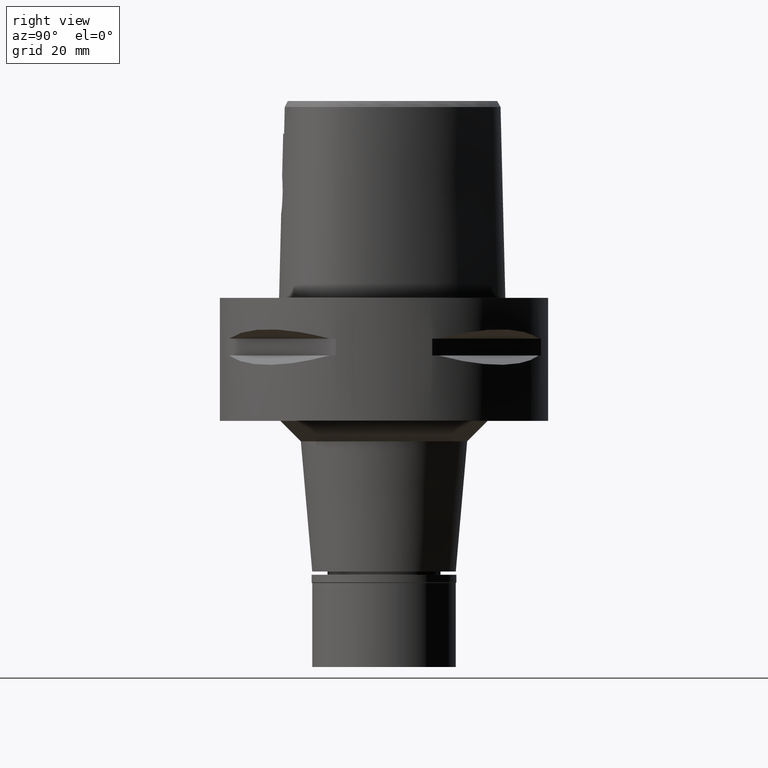
[diagram: clean part render]
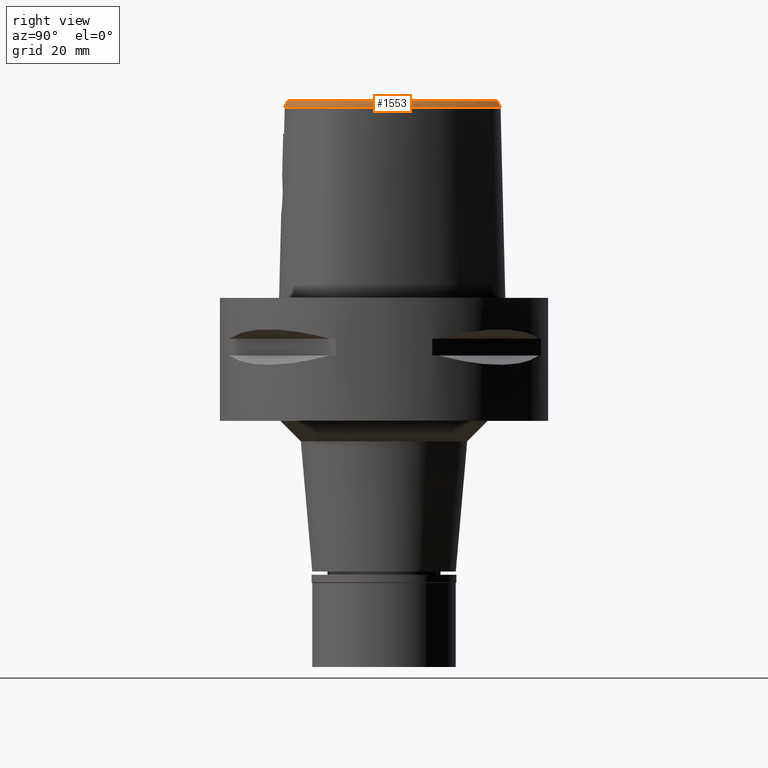
[diagram: same view with one face highlighted and labeled with its STEP entity id]
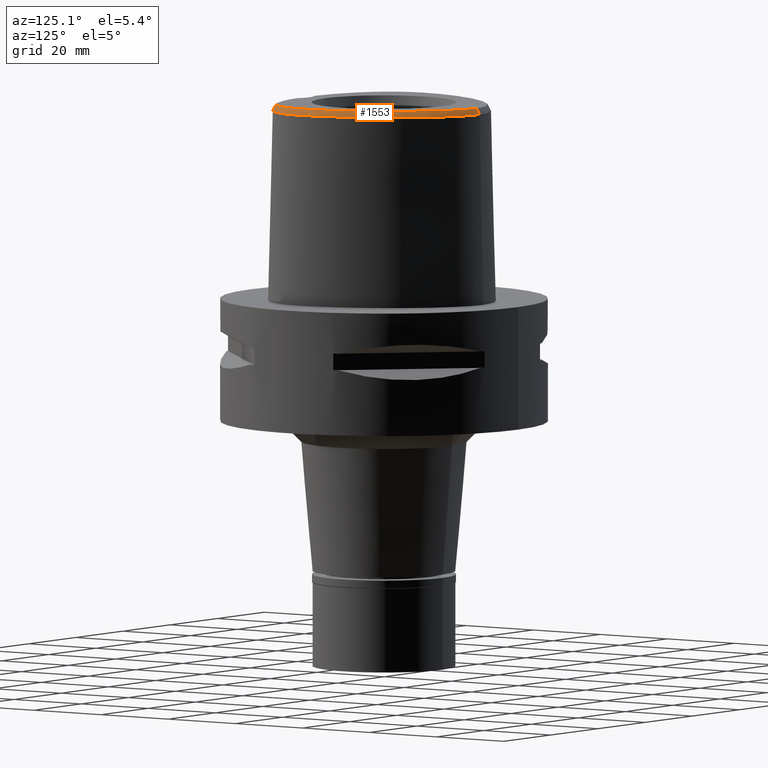
[diagram: same view with one face highlighted and labeled with its STEP entity id]
A machine part, right view. The second image highlights one B-rep face of the part: STEP entity #1553.
A second angle (auxiliary view) of the same face is appended — the face is thin or edge-on in the first view.
In plain terms, the highlighted face is a freeform B-spline surface patch.
Its self-contained STEP definition (entity closure, byte-faithful):
#1 = CARTESIAN_POINT ( 'NONE',  ( 18.43950286813999639, 16.56046399036999972, 46.33802400295999746 ) ) ;
#14 = CARTESIAN_POINT ( 'NONE',  ( -0.5411535927034999416, 28.50621727621999923, 46.33802340310999313 ) ) ;
#24 = CARTESIAN_POINT ( 'NONE',  ( 20.57834071988999725, 13.37729164177999941, 46.33802354784000244 ) ) ;
#66 = CARTESIAN_POINT ( 'NONE',  ( 16.39076485917556880, -21.20751266143113156, 46.52069409116129606 ) ) ;
#115 = CARTESIAN_POINT ( 'NONE',  ( 26.31362514631000238, -3.999883274220000118, 46.95290429171999591 ) ) ;
#138 = LINE ( 'NONE', #2857, #2443 ) ;
#144 = CARTESIAN_POINT ( 'NONE',  ( 24.57708372192999846, 3.020265341427999850, 47.56778458952999955 ) ) ;
#154 = CARTESIAN_POINT ( 'NONE',  ( 21.11289573496999949, -17.02247010655999659, 48.18266515062000366 ) ) ;
#164 = CARTESIAN_POINT ( 'NONE',  ( 22.45659887780828967, 7.877591736060228556, 48.00000000000376588 ) ) ;
#168 = CARTESIAN_POINT ( 'NONE',  ( 21.26050392519000098, 11.53300913518999948, 46.95290411511999906 ) ) ;
#181 = CARTESIAN_POINT ( 'NONE',  ( 3.509388651876999887, -24.38554859203000191, 46.33802515374999587 ) ) ;
#190 = CARTESIAN_POINT ( 'NONE',  ( 4.491298471527702674, 26.80158405531556554, 48.00000000000324007 ) ) ;
#195 = CARTESIAN_POINT ( 'NONE',  ( 3.841287394385000109, 27.62030014480999895, 46.95290447873000517 ) ) ;
#204 = CARTESIAN_POINT ( 'NONE',  ( 18.35629572338999793, -19.86592511087000190, 46.95290423267000079 ) ) ;
#212 = CARTESIAN_POINT ( 'NONE',  ( 24.34579675531232112, 2.948329282943770391, 48.00000000001110578 ) ) ;
#218 = CARTESIAN_POINT ( 'NONE',  ( 12.53612784758999865, 22.57209867215000187, 46.95290554992000409 ) ) ;
#237 = CARTESIAN_POINT ( 'NONE',  ( 13.73649434293000127, -21.98473153684999915, 46.95290426684000096 ) ) ;
#245 = CARTESIAN_POINT ( 'NONE',  ( 25.78811069501355391, -5.218135357747569536, 48.00000000001148237 ) ) ;
#247 = CARTESIAN_POINT ( 'NONE',  ( 14.52988293424999888, 20.17292910605000245, 47.56778553004999566 ) ) ;
#258 = CARTESIAN_POINT ( 'NONE',  ( 19.71319970464999827, -18.15714131269000120, 48.18266508833000472 ) ) ;
#268 = CARTESIAN_POINT ( 'NONE',  ( 25.74155027847784893, -7.352132003089971946, 48.00000000000314770 ) ) ;
#270 = CARTESIAN_POINT ( 'NONE',  ( 4.472216720976999405, -24.20009030094000124, 46.52069014668999358 ) ) ;
#272 = CARTESIAN_POINT ( 'NONE',  ( 2.874676923873999979, 27.15616836459999917, 48.18266509505000528 ) ) ;
#282 = CARTESIAN_POINT ( 'NONE',  ( 26.37724094575000322, -6.332058012550000115, 46.95290442977999845 ) ) ;
#295 = CARTESIAN_POINT ( 'NONE',  ( 21.78596494080420953, -16.52262878100317423, 48.00000000000203926 ) ) ;
#298 = CARTESIAN_POINT ( 'NONE',  ( 8.528179086875999459, 25.93721919992999858, 46.33802360507999651 ) ) ;
#314 = CARTESIAN_POINT ( 'NONE',  ( 24.84710733047000275, -12.40399542197999949, 47.56778472267999547 ) ) ;
#335 = CARTESIAN_POINT ( 'NONE',  ( 22.51168726802000108, -16.10559452158999605, 47.56778461883000375 ) ) ;
#345 = CARTESIAN_POINT ( 'NONE',  ( 10.99875819582631742, 24.38035098656107991, 46.52071268652616709 ) ) ;
#356 = CARTESIAN_POINT ( 'NONE',  ( 26.02432140029000252, -11.12325284221000032, 46.33802347192999349 ) ) ;
#366 = CARTESIAN_POINT ( 'NONE',  ( 13.63304938780058073, 22.11238814014353338, 46.52071155953430548 ) ) ;
#382 = CARTESIAN_POINT ( 'NONE',  ( 26.42769315610999925, -9.384851671964000275, 46.33802332118000322 ) ) ;
#411 = CARTESIAN_POINT ( 'NONE',  ( 17.60599060682000072, 15.94903692397000050, 48.18266507903999951 ) ) ;
#419 = CARTESIAN_POINT ( 'NONE',  ( 2.878136434665000021, -23.39194313750999754, 48.18266497532999892 ) ) ;
#423 = CARTESIAN_POINT ( 'NONE',  ( 26.53043812451214478, -3.252830914801275508, 46.52070254359986023 ) ) ;
#424 = CARTESIAN_POINT ( 'NONE',  ( 0.7467689276482000205, 28.50027894028000119, 46.33802324219000468 ) ) ;
#433 = CARTESIAN_POINT ( 'NONE',  ( 26.05149428239000287, 0.1304452533182000051, 46.33802406630000092 ) ) ;
#519 = CARTESIAN_POINT ( 'NONE',  ( 23.30388493096999980, 8.264288335471999147, 46.33802598874000722 ) ) ;
#530 = CARTESIAN_POINT ( 'NONE',  ( 12.32744696961000130, -22.44857317242999883, 46.95290429007999933 ) ) ;
#532 = CARTESIAN_POINT ( 'NONE',  ( 12.15683615294029352, -21.88711351950809458, 48.00000000000355271 ) ) ;
#548 = CARTESIAN_POINT ( 'NONE',  ( 20.95979648964000219, 11.36477241055999876, 47.56778461859000373 ) ) ;
#560 = CARTESIAN_POINT ( 'NONE',  ( 10.64350221649999995, -22.20543686866000144, 48.18266513273999863 ) ) ;
#568 = CARTESIAN_POINT ( 'NONE',  ( 24.00708073425740352, -13.59389763843170584, 48.00000000000810729 ) ) ;
#572 = CARTESIAN_POINT ( 'NONE',  ( 13.17163801908000131, 21.05047794357999891, 48.18266467973000289 ) ) ;
#584 = CARTESIAN_POINT ( 'NONE',  ( 17.34650972298999960, -20.42430267193999782, 46.95290405944999890 ) ) ;
#585 = CARTESIAN_POINT ( 'NONE',  ( 4.358863301034158866, -23.38302754646648651, 48.00000000000662226 ) ) ;
#594 = CARTESIAN_POINT ( 'NONE',  ( 5.331982176208637014, 26.48833275828505762, 48.00000000000437694 ) ) ;
#597 = CARTESIAN_POINT ( 'NONE',  ( 5.293671705630999647, 26.39338998718999818, 48.18266513905999915 ) ) ;
#607 = CARTESIAN_POINT ( 'NONE',  ( 3.432736435283000098, -23.35494909631000127, 48.18266495255999615 ) ) ;
#626 = CARTESIAN_POINT ( 'NONE',  ( 5.422630979152000208, 26.71298279306999746, 47.56778457834000307 ) ) ;
#642 = CARTESIAN_POINT ( 'NONE',  ( 9.058552399710000813, -22.57631281572000148, 48.18266513224000391 ) ) ;
#650 = CARTESIAN_POINT ( 'NONE',  ( 18.76051936065659476, 14.48366014233034171, 48.00000000000756728 ) ) ;
#651 = B_SPLINE_CURVE_WITH_KNOTS ( 'NONE', 3,
 ( #3894, #3923, #1225, #727, #3517, #345, #366, #3542, #3134, #2004, #423, #3568, #4691, #4641, #4669, #1921, #1141, #1637, #3155, #4715, #1604, #3488, #66, #1163, #2749, #1188 ),
 .UNSPECIFIED., .F., .F.,
 ( 4, 2, 2, 2, 2, 2, 2, 2, 2, 2, 2, 2, 4 ),
 ( 0.0000000000000000000, 0.06250000000000000000, 0.1250000000000000000, 0.2499999999999999445, 0.4999999999999998890, 0.5624999999999998890, 0.6249999999999998890, 0.6874999999999998890, 0.7187499999999998890, 0.7499999999999998890, 0.8124999999999998890, 0.8749999999999998890, 1.000000000000000000 ),
 .UNSPECIFIED. ) ;
#655 = CARTESIAN_POINT ( 'NONE',  ( 4.794166553444000556, 27.68249828417999936, 46.33802392881000287 ) ) ;
#664 = CARTESIAN_POINT ( 'NONE',  ( 24.02148544150000120, -15.31764509579999967, 46.33802336610000339 ) ) ;
#674 = CARTESIAN_POINT ( 'NONE',  ( 22.33100613406677937, -15.94420923685450475, 48.00000000000585487 ) ) ;
#677 = CARTESIAN_POINT ( 'NONE',  ( 0.7075336095839001027, 27.81207658802000182, 47.56778452250000555 ) ) ;
#687 = CARTESIAN_POINT ( 'NONE',  ( 23.28034457108999788, -15.72899008985000080, 46.95290438330000171 ) ) ;
#714 = CARTESIAN_POINT ( 'NONE',  ( 24.15217140319999700, -14.50258050927000042, 46.95290389460000569 ) ) ;
#727 = CARTESIAN_POINT ( 'NONE',  ( 5.530043876419189708, 27.35846726635969262, 46.52071494050974110 ) ) ;
#740 = CARTESIAN_POINT ( 'NONE',  ( 24.54633358082999806, -13.07701633097000027, 47.56778446169000318 ) ) ;
#764 = CARTESIAN_POINT ( 'NONE',  ( 25.74893635269999947, -9.264935650655999666, 47.56778454305000281 ) ) ;
#794 = CARTESIAN_POINT ( 'NONE',  ( 23.71480609434000186, 4.513844615388999948, 48.18266516701000057 ) ) ;
#808 = CARTESIAN_POINT ( 'NONE',  ( -0.01607486358922000091, 27.83266569382000100, 47.56778467571000135 ) ) ;
#820 = CARTESIAN_POINT ( 'NONE',  ( 26.52960715546000259, -2.680349596900000186, 46.33802367807000167 ) ) ;
#909 = CARTESIAN_POINT ( 'NONE',  ( 24.24804904942000050, 2.917927290169999743, 48.18266513434000586 ) ) ;
#918 = CARTESIAN_POINT ( 'NONE',  ( 20.66506287690999955, -17.85940181649000280, 47.56778454951000157 ) ) ;
#930 = CARTESIAN_POINT ( 'NONE',  ( 23.72539072922000258, 6.416340961018000222, 46.95290477523000305 ) ) ;
#941 = CARTESIAN_POINT ( 'NONE',  ( 14.91086941156999934, -21.16960785240000220, 47.56778459312000251 ) ) ;
#944 = CARTESIAN_POINT ( 'NONE',  ( 17.07549476912088338, -19.90378693825266510, 48.00000000001053024 ) ) ;
#957 = CARTESIAN_POINT ( 'NONE',  ( 25.41171405094233648, -1.468769615952869589, 48.00000000000984812 ) ) ;
#963 = CARTESIAN_POINT ( 'NONE',  ( 18.67554920066999813, 14.42657791169999904, 48.18266504364000014 ) ) ;
#965 = CARTESIAN_POINT ( 'NONE',  ( 4.472216720976999405, -24.20009030094000124, 46.52069014668999358 ) ) ;
#979 = CARTESIAN_POINT ( 'NONE',  ( 16.38705786137999709, -21.27979599520999798, 46.33802395699999721 ) ) ;
#987 = CARTESIAN_POINT ( 'NONE',  ( 14.35433142683603336, 20.00604447575085487, 48.00000000000230926 ) ) ;
#991 = CARTESIAN_POINT ( 'NONE',  ( 9.162461845584999764, 24.72869486535999783, 47.56778460323000246 ) ) ;
#1002 = CARTESIAN_POINT ( 'NONE',  ( 10.72907888047000036, -22.53922613905000105, 47.56778459331999898 ) ) ;
#1003 = CARTESIAN_POINT ( 'NONE',  ( 15.99678577414538339, -20.43406366493351456, 48.00000000000904521 ) ) ;
#1010 = CARTESIAN_POINT ( 'NONE',  ( 7.112111422624984414, 25.66156608519343862, 48.00000000000465405 ) ) ;
#1012 = CARTESIAN_POINT ( 'NONE',  ( 9.978542016815000082, 23.74375122918999992, 48.18266515378999770 ) ) ;
#1024 = CARTESIAN_POINT ( 'NONE',  ( 18.53015989414000231, -20.16346613882999605, 46.33802379824000184 ) ) ;
#1035 = CARTESIAN_POINT ( 'NONE',  ( 2.897393261679677590, 27.25600202853102516, 47.99999999999998579 ) ) ;
#1044 = CARTESIAN_POINT ( 'NONE',  ( 13.41076986222000045, 21.29858345911999962, 47.56778566519000151 ) ) ;
#1054 = CARTESIAN_POINT ( 'NONE',  ( 25.36220458565000158, -10.93162402374000131, 47.56778458224999895 ) ) ;
#1063 = CARTESIAN_POINT ( 'NONE',  ( 24.32795549673483748, -12.97211154200324046, 48.00000000001168132 ) ) ;
#1067 = CARTESIAN_POINT ( 'NONE',  ( 7.225125039216999667, 25.87582929107999874, 47.56778477671999639 ) ) ;
#1078 = CARTESIAN_POINT ( 'NONE',  ( 25.69326299296999849, -11.02743843298000037, 46.95290402708999267 ) ) ;
#1089 = CARTESIAN_POINT ( 'NONE',  ( 10.18171432111999941, 24.02208807508000277, 47.56778454350000374 ) ) ;
#1100 = CARTESIAN_POINT ( 'NONE',  ( 25.16767392208999965, -13.37549672861999994, 46.33802300831999332 ) ) ;
#1128 = CARTESIAN_POINT ( 'NONE',  ( 24.52857122625000130, -12.27238596123000036, 48.18266507806000476 ) ) ;
#1141 = CARTESIAN_POINT ( 'NONE',  ( 24.33934953590530625, -14.68006085516641512, 46.52069803563262695 ) ) ;
#1142 = CARTESIAN_POINT ( 'NONE',  ( -0.01713114112638999820, 28.52201984853000027, 46.33802383133000546 ) ) ;
#1154 = CARTESIAN_POINT ( 'NONE',  ( 25.90860160546000301, -10.20256986334999993, 46.95290396821999934 ) ) ;
#1163 = CARTESIAN_POINT ( 'NONE',  ( 11.70978320535149386, -23.05272019184888777, 46.52069240067358180 ) ) ;
#1165 = CARTESIAN_POINT ( 'NONE',  ( -0.4990981238780000107, 27.47344184091000230, 48.18266514497000230 ) ) ;
#1176 = CARTESIAN_POINT ( 'NONE',  ( 17.88382802726000165, 16.15284594610000113, 47.56778472034999794 ) ) ;
#1188 = CARTESIAN_POINT ( 'NONE',  ( 4.472216720976999405, -24.20009030094000124, 46.52069014668999358 ) ) ;
#1209 = CARTESIAN_POINT ( 'NONE',  ( 25.62637795912000271, -4.051866679264000126, 48.18266509125000141 ) ) ;
#1225 = CARTESIAN_POINT ( 'NONE',  ( 2.760678900605150421, 28.19254769429840479, 46.52071606750156008 ) ) ;
#1234 = EDGE_CURVE ( 'NONE', #3121, #3269, #138, .T. ) ;
#1301 = CARTESIAN_POINT ( 'NONE',  ( 26.37473671356000082, -5.202030594842000255, 46.95290399021000383 ) ) ;
#1312 = CARTESIAN_POINT ( 'NONE',  ( 20.32170819522000116, -18.99297843326000290, 46.33802391847000024 ) ) ;
#1326 = CARTESIAN_POINT ( 'NONE',  ( 22.16524007796000006, 9.835499120369000536, 46.95290531444999971 ) ) ;
#1336 = CARTESIAN_POINT ( 'NONE',  ( 13.85135768944000212, -22.30961763924000252, 46.33802385247000188 ) ) ;
#1346 = CARTESIAN_POINT ( 'NONE',  ( 11.07918744941278710, 23.03051546724945453, 48.00000000000558487 ) ) ;
#1350 = CARTESIAN_POINT ( 'NONE',  ( 21.56121136073999978, 11.70124585980999932, 46.33802361165000150 ) ) ;
#1364 = CARTESIAN_POINT ( 'NONE',  ( 15.17010390322000113, -21.80819201027999910, 46.33802351373000050 ) ) ;
#1366 = CARTESIAN_POINT ( 'NONE',  ( 14.81975810290956375, -20.94516920634563206, 48.00000000000914469 ) ) ;
#1376 = CARTESIAN_POINT ( 'NONE',  ( 12.14811716929942698, 22.13187320258469981, 48.00000000000200373 ) ) ;
#1382 = CARTESIAN_POINT ( 'NONE',  ( 2.239190224898000015, 27.98460823625999794, 46.95290373381000393 ) ) ;
#1395 = CARTESIAN_POINT ( 'NONE',  ( 7.549327029004999190, -23.91352827992000130, 46.33802345083000063 ) ) ;
#1405 = CARTESIAN_POINT ( 'NONE',  ( 8.352550235656998723, 25.64071864893000097, 46.95290411097000316 ) ) ;
#1418 = CARTESIAN_POINT ( 'NONE',  ( 17.50565638156000148, -20.72996233597000071, 46.33802352328999774 ) ) ;
#1429 = CARTESIAN_POINT ( 'NONE',  ( 7.385901060748000013, 26.18064553218000157, 46.95290449822000056 ) ) ;
#1438 = CARTESIAN_POINT ( 'NONE',  ( 25.63943502143999709, -7.344796570949999825, 48.18266503952999358 ) ) ;
#1450 = CARTESIAN_POINT ( 'NONE',  ( 23.18188527997380532, 6.195157684106592733, 47.99999999999972289 ) ) ;
#1457 = CARTESIAN_POINT ( 'NONE',  ( 13.88903354848999960, 21.79479449020000104, 46.33802763612000319 ) ) ;
#1471 = CARTESIAN_POINT ( 'NONE',  ( 21.95759681244999939, -16.69360157045000292, 47.56778457464000098 ) ) ;
#1483 = CARTESIAN_POINT ( 'NONE',  ( 8.001292533219000802, 25.04771754693999952, 48.18266512277000402 ) ) ;
#1492 = CARTESIAN_POINT ( 'NONE',  ( 26.24433306268999999, -10.28042059604000080, 46.33802337850000441 ) ) ;
#1513 = CARTESIAN_POINT ( 'NONE',  ( 23.54965866178999789, -15.94406052730000134, 46.33802403731999675 ) ) ;
#1545 = CARTESIAN_POINT ( 'NONE',  ( 22.76872880654000042, -16.33518529831999899, 46.95290411570999822 ) ) ;
#1553 = ADVANCED_FACE ( 'NONE', ( #3175 ), #4349, .F. ) ;
#1568 = CARTESIAN_POINT ( 'NONE',  ( 16.50781389038000313, 17.38127717165999897, 48.18266519101999990 ) ) ;
#1591 = CARTESIAN_POINT ( 'NONE',  ( 17.31504497730000125, 18.02701690221000064, 46.33802298420000199 ) ) ;
#1604 = CARTESIAN_POINT ( 'NONE',  ( 20.45409312013851988, -18.82869992193702657, 46.52069578164903163 ) ) ;
#1627 = ORIENTED_EDGE ( 'NONE', *, *, #3934, .T. ) ;
#1637 = CARTESIAN_POINT ( 'NONE',  ( 23.53784508589650315, -15.81022840325133139, 46.52069747213671747 ) ) ;
#1684 = CARTESIAN_POINT ( 'NONE',  ( 25.84557421587999926, -2.764586361117999935, 47.56778463586000782 ) ) ;
#1716 = CARTESIAN_POINT ( 'NONE',  ( 24.90611839443999997, 3.122603392687000046, 46.95290404472999768 ) ) ;
#1729 = CARTESIAN_POINT ( 'NONE',  ( 13.62163099640999953, -21.65984543445999932, 47.56778468121000003 ) ) ;
#1741 = CARTESIAN_POINT ( 'NONE',  ( 9.029067995419824300, 24.52649931749715861, 48.00000000001080025 ) ) ;
#1745 = CARTESIAN_POINT ( 'NONE',  ( 26.65724873990999910, -3.973891571697000025, 46.33802389195000870 ) ) ;
#1756 = CARTESIAN_POINT ( 'NONE',  ( 3.483837913011999632, -24.04201542678999814, 46.95290508669000218 ) ) ;
#1764 = CARTESIAN_POINT ( 'NONE',  ( 23.65541542675512687, -14.18997106324353297, 48.00000000001105604 ) ) ;
#1769 = CARTESIAN_POINT ( 'NONE',  ( 3.027610697659999683, 27.82828105751999814, 46.95290426986999677 ) ) ;
#1780 = CARTESIAN_POINT ( 'NONE',  ( 3.181163865392999668, -24.06339091685999776, 46.95290502523000242 ) ) ;
#1794 = CARTESIAN_POINT ( 'NONE',  ( 25.60516200877858850, -2.794192459353071811, 48.00000000000368772 ) ) ;
#1798 = CARTESIAN_POINT ( 'NONE',  ( 9.352231301449998924, 25.01634335175999979, 46.95290407790999154 ) ) ;
#1811 = CARTESIAN_POINT ( 'NONE',  ( 14.78125216574999889, -20.85031577346000020, 48.18266513281999863 ) ) ;
#1822 = CARTESIAN_POINT ( 'NONE',  ( 2.123382038864999988, 27.30510347903999957, 48.18266518856999880 ) ) ;
#1836 = CARTESIAN_POINT ( 'NONE',  ( 12.12707321900000146, -21.78916728793000246, 48.18266509152999788 ) ) ;
#1845 = CARTESIAN_POINT ( 'NONE',  ( 25.64658655008008026, -8.318518488027471847, 48.00000000000896705 ) ) ;
#1847 = CARTESIAN_POINT ( 'NONE',  ( 3.935832015791999705, -23.66630391297000102, 47.55621598974999387 ) ) ;
#1848 = CARTESIAN_POINT ( 'NONE',  ( 1.435290817617000059, 27.75042736177000080, 47.56778439369999489 ) ) ;
#1858 = CARTESIAN_POINT ( 'NONE',  ( 26.08831475440999981, -9.324893661309999970, 46.95290393211000435 ) ) ;
#1871 = CARTESIAN_POINT ( 'NONE',  ( 18.95779336836821116, -18.80349047534956242, 48.00000000000044764 ) ) ;
#1877 = CARTESIAN_POINT ( 'NONE',  ( 15.02937093910000144, 20.64775767492999847, 46.33802711647999928 ) ) ;
#1888 = CARTESIAN_POINT ( 'NONE',  ( 24.79431518123999822, -11.57611324977999878, 48.18266510553999638 ) ) ;
#1912 = CARTESIAN_POINT ( 'NONE',  ( 21.71342898274000177, -16.45037136770000075, 48.18266514062000283 ) ) ;
#1921 = CARTESIAN_POINT ( 'NONE',  ( 24.69258566271574651, -14.08975149522464321, 46.52069831738057815 ) ) ;
#1923 = CARTESIAN_POINT ( 'NONE',  ( -0.5131166134864999506, 27.81770031935000276, 47.56778456434999924 ) ) ;
#1934 = CARTESIAN_POINT ( 'NONE',  ( 25.23713869099000107, -10.04686839796999998, 48.18266514767999809 ) ) ;
#1966 = CARTESIAN_POINT ( 'NONE',  ( 19.53361932649999844, 15.00302212255000178, 46.33802432510000102 ) ) ;
#1977 = CARTESIAN_POINT ( 'NONE',  ( -0.01660300235780999903, 28.17734277117000019, 46.95290425352000341 ) ) ;
#1990 = CARTESIAN_POINT ( 'NONE',  ( 25.71474844872000176, 0.05733830567148000268, 46.95290440156000500 ) ) ;
#1999 = CARTESIAN_POINT ( 'NONE',  ( 2.899502052801000040, -23.73575536824000309, 47.56778496576000492 ) ) ;
#2004 = CARTESIAN_POINT ( 'NONE',  ( 26.30769162470500433, -1.593520748820492328, 46.52070310709576262 ) ) ;
#2014 = CARTESIAN_POINT ( 'NONE',  ( 25.35517940871000064, 1.556803668239000071, 46.95290407022999801 ) ) ;
#2104 = CARTESIAN_POINT ( 'NONE',  ( 25.37800261505000066, -0.01576864197519999705, 47.56778473681999486 ) ) ;
#2122 = CARTESIAN_POINT ( 'NONE',  ( 12.42763384492000078, -22.77827611469000146, 46.33802388935000494 ) ) ;
#2124 = CARTESIAN_POINT ( 'NONE',  ( 3.695072017993002333, -23.43648746218571333, 48.00000000000319034 ) ) ;
#2138 = CARTESIAN_POINT ( 'NONE',  ( 22.47255112336000238, 9.991350365903000963, 46.33802551526000002 ) ) ;
#2149 = CARTESIAN_POINT ( 'NONE',  ( 9.200701649944999616, -23.25065551721999668, 46.95290405675000045 ) ) ;
#2158 = CARTESIAN_POINT ( 'NONE',  ( 23.26225374360095799, -14.77782433121106287, 48.00000000000564881 ) ) ;
#2163 = CARTESIAN_POINT ( 'NONE',  ( 11.23092837014000089, 23.21932253729000095, 47.56778454386999755 ) ) ;
#2175 = CARTESIAN_POINT ( 'NONE',  ( 10.90023220842000029, -23.20680467983999762, 46.33802351448999701 ) ) ;
#2184 = CARTESIAN_POINT ( 'NONE',  ( -2.553408000961000117E-11, 27.58331912251000162, 48.00000000000000000 ) ) ;
#2188 = CARTESIAN_POINT ( 'NONE',  ( 5.680549526193999554, 27.35216840481999867, 46.33802345689999669 ) ) ;
#2200 = CARTESIAN_POINT ( 'NONE',  ( 13.50676764989999867, -21.33495933206999950, 48.18266509559000355 ) ) ;
#2202 = CARTESIAN_POINT ( 'NONE',  ( 9.079666835764275135, -22.67647771863741113, 48.00000000001086420 ) ) ;
#2215 = CARTESIAN_POINT ( 'NONE',  ( 20.74842146925203323, 11.24651447313918950, 48.00000000001187317 ) ) ;
#2219 = CARTESIAN_POINT ( 'NONE',  ( 3.935824339249999859, 27.95172186238999856, 46.33802418879000129 ) ) ;
#2233 = CARTESIAN_POINT ( 'NONE',  ( 19.27869631283999752, -19.29484500919999945, 46.95290462096999562 ) ) ;
#2241 = CARTESIAN_POINT ( 'NONE',  ( 24.78780591084523977, 1.407047860335382206, 48.00000000000370193 ) ) ;
#2244 = CARTESIAN_POINT ( 'NONE',  ( 6.306882574250999518, 26.33016461968000144, 47.56778470735000042 ) ) ;
#2254 = CARTESIAN_POINT ( 'NONE',  ( 24.21918028199999995, -13.71098583956999839, 47.56778464663999983 ) ) ;
#2264 = CARTESIAN_POINT ( 'NONE',  ( 21.18145661121534928, -17.09850743469617029, 47.99999999999928235 ) ) ;
#2267 = CARTESIAN_POINT ( 'NONE',  ( 10.38488662542000007, 24.30042492096000117, 46.95290393322000710 ) ) ;
#2276 = CARTESIAN_POINT ( 'NONE',  ( 25.03114617831999666, -10.83580961449999869, 48.18266513740999812 ) ) ;
#2308 = CARTESIAN_POINT ( 'NONE',  ( 25.44497391694000399, -11.80365791546000054, 46.95290420973999801 ) ) ;
#2320 = CARTESIAN_POINT ( 'NONE',  ( -0.8220268891945999856, 28.49011209308000048, 46.33802270348000008 ) ) ;
#2329 = CARTESIAN_POINT ( 'NONE',  ( 25.16564343469000065, -12.53560488273000040, 46.95290436730999772 ) ) ;
#2354 = CARTESIAN_POINT ( 'NONE',  ( 25.54497714122000218, -8.305979364054000058, 48.18266511854000100 ) ) ;
#2385 = CARTESIAN_POINT ( 'NONE',  ( 21.85792903256999864, 9.679647874834000021, 47.56778511363999939 ) ) ;
#2396 = CARTESIAN_POINT ( 'NONE',  ( -0.8011462214507999446, 28.14629489488999781, 46.95290354293999258 ) ) ;
#2406 = CARTESIAN_POINT ( 'NONE',  ( 25.97000155270999855, -4.025874976742000122, 47.56778469147999999 ) ) ;
#2443 = VECTOR ( 'NONE', #4772, 1000.000000000000114 ) ;
#2492 = CARTESIAN_POINT ( 'NONE',  ( 22.99041496917999794, 8.121222404210000079, 46.95290561275000130 ) ) ;
#2504 = CARTESIAN_POINT ( 'NONE',  ( 18.18243155262999977, -19.56838408292000153, 47.56778466711000419 ) ) ;
#2514 = CARTESIAN_POINT ( 'NONE',  ( 24.03916157868999903, 4.630155515772000463, 47.56778451223000559 ) ) ;
#2533 = CARTESIAN_POINT ( 'NONE',  ( 3.204459058509999902, -24.40708324943999941, 46.33802505620000289 ) ) ;
#2535 = CARTESIAN_POINT ( 'NONE',  ( 5.628119991152867208, -23.25222728397290339, 48.00000000000660094 ) ) ;
#2545 = CARTESIAN_POINT ( 'NONE',  ( 25.79052179444597215, -6.319355031380002430, 48.00000000001254818 ) ) ;
#2549 = CARTESIAN_POINT ( 'NONE',  ( 18.96157257594000001, 14.61872598197999906, 47.56778480412999954 ) ) ;
#2559 = CARTESIAN_POINT ( 'NONE',  ( 17.02821640585000296, -19.81298334385999738, 48.18266513177000121 ) ) ;
#2569 = CARTESIAN_POINT ( 'NONE',  ( 2.140583849880604017, 27.40603513869532648, 48.00000000000401457 ) ) ;
#2572 = CARTESIAN_POINT ( 'NONE',  ( 12.30827841692999947, 22.31358742951000096, 47.56778521082999589 ) ) ;
#2583 = CARTESIAN_POINT ( 'NONE',  ( 12.22726009431000094, -22.11887023018000065, 47.56778469080000349 ) ) ;
#2592 = CARTESIAN_POINT ( 'NONE',  ( 13.24267791555758045, 21.12418368643762179, 48.00000000000481748 ) ) ;
#2593 = CARTESIAN_POINT ( 'NONE',  ( 4.209591590047999432, -23.91901291796000351, 47.06412201753999369 ) ) ;
#2594 = CARTESIAN_POINT ( 'NONE',  ( 8.972692389718998740, 24.44104637895000209, 48.18266512855000627 ) ) ;
#2608 = CARTESIAN_POINT ( 'NONE',  ( 18.90181208111000188, -18.71777403124000116, 48.18266503379999932 ) ) ;
#2623 = CARTESIAN_POINT ( 'NONE',  ( 17.68852893097859535, 16.00958332232212911, 48.00000000000225953 ) ) ;
#2626 = CARTESIAN_POINT ( 'NONE',  ( 13.64990170535000047, 21.54668897466000033, 46.95290665065999036 ) ) ;
#2635 = CARTESIAN_POINT ( 'NONE',  ( 24.82265661490000141, -14.04413109615000010, 46.33802371951999532 ) ) ;
#2650 = CARTESIAN_POINT ( 'NONE',  ( 1.474203626465000028, 28.09287854701000242, 46.95290357030999928 ) ) ;
#2662 = CARTESIAN_POINT ( 'NONE',  ( 22.25464572949999820, -15.87600374486999932, 48.18266512194999507 ) ) ;
#2675 = CARTESIAN_POINT ( 'NONE',  ( 15.91538373184000044, 19.16413730592000064, 46.95290461194999665 ) ) ;
#2684 = CARTESIAN_POINT ( 'NONE',  ( 22.20176464216000056, -16.93683177321000244, 46.95290400866999647 ) ) ;
#2715 = CARTESIAN_POINT ( 'NONE',  ( 21.57446985083999635, -17.53437812800000017, 46.95290395131999617 ) ) ;
#2728 = CARTESIAN_POINT ( 'NONE',  ( -0.7593848859632000847, 27.45866049852000401, 48.18266522187000334 ) ) ;
#2739 = CARTESIAN_POINT ( 'NONE',  ( 24.23566341020000081, -12.92777613215000088, 48.18266518837000234 ) ) ;
#2749 = CARTESIAN_POINT ( 'NONE',  ( 8.153873202538834519, -23.84765792154105668, 46.52069127368180546 ) ) ;
#2764 = CARTESIAN_POINT ( 'NONE',  ( 17.04596794832999862, 17.81177032536000127, 46.95290371981000277 ) ) ;
#2795 = CARTESIAN_POINT ( 'NONE',  ( 25.50355774608999937, -2.806704743227999899, 48.18266511475000158 ) ) ;
#2802 = CARTESIAN_POINT ( 'NONE',  ( 3.134573479159000087, -23.37600625169999802, 48.18266496327999704 ) ) ;
#2857 = CARTESIAN_POINT ( 'NONE',  ( -1.216284564536000097E-11, 28.41206021534999593, 46.52071719450999154 ) ) ;
#2888 = CARTESIAN_POINT ( 'NONE',  ( 23.40623093775000285, 6.286456690981999884, 47.56778489106000052 ) ) ;
#2898 = CARTESIAN_POINT ( 'NONE',  ( 20.44807877053999690, -17.59165329740999795, 48.18266515124000193 ) ) ;
#2910 = CARTESIAN_POINT ( 'NONE',  ( 24.68787254740999870, 4.862777316537000516, 46.33802320267000141 ) ) ;
#2920 = CARTESIAN_POINT ( 'NONE',  ( 4.349198265247999906, -23.28113975369000244, 48.18266493763999847 ) ) ;
#2929 = CARTESIAN_POINT ( 'NONE',  ( 25.14129527416663379, -0.06715740301637056209, 48.00000000000272138 ) ) ;
#2934 = CARTESIAN_POINT ( 'NONE',  ( 19.99107071822000137, 13.01669596390000017, 47.56778460198999881 ) ) ;
#2953 = CARTESIAN_POINT ( 'NONE',  ( 3.458287174148000354, -23.69848226155000148, 47.56778501962000405 ) ) ;
#2955 = CARTESIAN_POINT ( 'NONE',  ( 10.66892483387118595, -22.30459704282402456, 48.00000000001232792 ) ) ;
#2966 = CARTESIAN_POINT ( 'NONE',  ( 5.551590252672999881, 27.03257559895000028, 46.95290401761999988 ) ) ;
#2969 = CARTESIAN_POINT ( 'NONE',  ( -2.553408000961000117E-11, 27.58331912251000162, 48.00000000000000000 ) ) ;
#2980 = CARTESIAN_POINT ( 'NONE',  ( 9.271776275062000749, -23.58782686797000139, 46.33802351901000094 ) ) ;
#2987 = CARTESIAN_POINT ( 'NONE',  ( 0.2325907962420786235, 27.58331912251099993, 48.00000000000051159 ) ) ;
#2989 = CARTESIAN_POINT ( 'NONE',  ( 4.458010733184999630, 26.70476420501000092, 48.18266508718999575 ) ) ;
#3000 = CARTESIAN_POINT ( 'NONE',  ( 7.492668184861999592, -23.57364031727000153, 46.95290401380000134 ) ) ;
#3010 = CARTESIAN_POINT ( 'NONE',  ( 16.58774972841672835, 17.44522137221418845, 48.00000000000935074 ) ) ;
#3012 = CARTESIAN_POINT ( 'NONE',  ( 14.28013893182999894, 19.93551482161999999, 48.18266473684000317 ) ) ;
#3023 = CARTESIAN_POINT ( 'NONE',  ( 25.98317158129999882, -7.369488828326999474, 47.56778481383999946 ) ) ;
#3036 = CARTESIAN_POINT ( 'NONE',  ( 24.62320007856474646, -12.31148373400847618, 48.00000000000586198 ) ) ;
#3043 = CARTESIAN_POINT ( 'NONE',  ( 3.104077584552999980, 28.16433740397999941, 46.33802385729000406 ) ) ;
#3053 = CARTESIAN_POINT ( 'NONE',  ( 26.03025546133000034, -5.211487708432999355, 47.56778456703000302 ) ) ;
#3064 = CARTESIAN_POINT ( 'NONE',  ( 10.58805892972000073, 24.57876176683999958, 46.33802332292999893 ) ) ;
#3072 = CARTESIAN_POINT ( 'NONE',  ( 25.40955795100000003, -9.204977640002001138, 48.18266515398000394 ) ) ;
#3093 = CARTESIAN_POINT ( 'NONE',  ( 23.01103048039000143, -15.51391965238999937, 47.56778472928999690 ) ) ;
#3121 = VERTEX_POINT ( 'NONE', #3697 ) ;
#3123 = CARTESIAN_POINT ( 'NONE',  ( 21.80525690878000233, -17.79033213872999752, 46.33802335167000308 ) ) ;
#3134 = CARTESIAN_POINT ( 'NONE',  ( 24.48700992949867583, 6.834036305490588603, 46.52070592457529585 ) ) ;
#3145 = CARTESIAN_POINT ( 'NONE',  ( 16.77689091935000221, 17.59652374851000189, 47.56778445541000622 ) ) ;
#3155 = CARTESIAN_POINT ( 'NONE',  ( 23.08984995680127028, -16.35075897049662430, 46.52069719038876627 ) ) ;
#3167 = CARTESIAN_POINT ( 'NONE',  ( 15.39596208582000081, 18.71121014681000005, 48.18266503537999768 ) ) ;
#3174 = B_SPLINE_CURVE_WITH_KNOTS ( 'NONE', 3,
 ( #270, #3742, #2593, #1847, #4983, #4281 ),
 .UNSPECIFIED., .F., .F.,
 ( 4, 1, 1, 4 ),
 ( 0.0000000000000000000, 0.3333333333333000081, 0.6666666666667000474, 1.000000000000000000 ),
 .UNSPECIFIED. ) ;
#3175 = FACE_OUTER_BOUND ( 'NONE', #3429, .T. ) ;
#3183 = CARTESIAN_POINT ( 'NONE',  ( -0.01554672482064000001, 27.48798861645999736, 48.18266509789999930 ) ) ;
#3202 = B_SPLINE_CURVE_WITH_KNOTS ( 'NONE', 3,
 ( #2184, #2987, #4541, #4956, #2569, #1035, #3740, #190, #594, #3328, #1010, #3795, #1741, #4516, #1346, #1376, #2592, #987, #4567, #3010, #2623, #650, #4129, #2215, #3690, #164, #1450, #4484, #212, #2241, #2929, #957, #1794, #3771, #245, #2545, #268, #1845, #3409, #4595, #4981, #4105, #3036, #1063, #568, #1764, #2158, #3717, #674, #295, #2264, #3819, #3442, #1871, #4144, #944, #1003, #1366, #3355, #532, #2955, #2202, #4098, #2535, #585, #2124, #4476 ),
 .UNSPECIFIED., .F., .F.,
 ( 4, 1, 1, 1, 1, 1, 1, 1, 1, 1, 1, 1, 1, 1, 1, 1, 1, 1, 1, 1, 1, 1, 1, 1, 1, 1, 1, 1, 1, 1, 1, 1, 1, 1, 1, 1, 1, 1, 1, 1, 1, 1, 1, 1, 1, 1, 1, 1, 1, 1, 1, 1, 1, 1, 1, 1, 1, 1, 1, 1, 1, 1, 1, 1, 4 ),
 ( 0.0000000000000000000, 0.01585579672639991777, 0.03171159345210006197, 0.04756739017779998413, 0.06342318690360004840, 0.07927898362929997056, 0.09513478035499989272, 0.1109905770807000369, 0.1268463738063999591, 0.1427021705320999923, 0.1585579672578999455, 0.1744137639835999787, 0.1902695607093000119, 0.2061253574349999340, 0.2219811541607000782, 0.2378369508864000004, 0.2536927476120999225, 0.2695485443380000179, 0.2854043410636999401, 0.3012601377893999732, 0.3171159345151000064, 0.3329717312407999286, 0.3488275279665000728, 0.3646833246923000260, 0.3805391214179999482, 0.3963949181436999813, 0.4122507148694000145, 0.4281065115951000477, 0.4439623083207999699, 0.4598181050465000030, 0.4756739017723000673, 0.4915296984979999895, 0.5073854952237000226, 0.5232412919494000558, 0.5390970886750999780, 0.5549528854007999001, 0.5708086821265999644, 0.5866644788522999976, 0.6025202755780000308, 0.6183760723036999529, 0.6342318690293999861, 0.6500876657551999394, 0.6659434624808999725, 0.6817992592067000368, 0.6976550559323999590, 0.7135108526580999921, 0.7293666493838000253, 0.7452224461095000585, 0.7610782428351999807, 0.7769340395610000449, 0.7927898362866999671, 0.8086456330124000003, 0.8245014297380999224, 0.8403572264637999556, 0.8562130231894999888, 0.8720688199152000220, 0.8879246166409999752, 0.9037804133667199924, 0.9196362100924300176, 0.9354920068181400428, 0.9513478035438499569, 0.9672036002695799661, 0.9830593969952899913, 0.9989151937210170029, 1.000000000000000000 ),
 .UNSPECIFIED. ) ;
#3260 = CARTESIAN_POINT ( 'NONE',  ( 25.02200371099999998, 1.468863367937999875, 47.56778460006000131 ) ) ;
#3269 = VERTEX_POINT ( 'NONE', #2969 ) ;
#3286 = CARTESIAN_POINT ( 'NONE',  ( 24.04455052068999876, 6.546225231053999671, 46.33802465940999582 ) ) ;
#3296 = CARTESIAN_POINT ( 'NONE',  ( 20.11887203170000049, -18.71436605973000056, 46.95290430842000262 ) ) ;
#3310 = CARTESIAN_POINT ( 'NONE',  ( 26.18759068566999915, -2.722467979009000505, 46.95290415695999542 ) ) ;
#3320 = CARTESIAN_POINT ( 'NONE',  ( 5.742577410937999005, -24.17652956579999923, 46.33802493268999001 ) ) ;
#3328 = CARTESIAN_POINT ( 'NONE',  ( 6.204805495149734895, 26.11047595223513795, 48.00000000000666489 ) ) ;
#3333 = CARTESIAN_POINT ( 'NONE',  ( 4.570062673270999021, 27.03067556474000099, 47.56778470106999634 ) ) ;
#3351 = CARTESIAN_POINT ( 'NONE',  ( 5.615540162280999503, -23.15063872333000106, 48.18266497685999639 ) ) ;
#3355 = CARTESIAN_POINT ( 'NONE',  ( 13.54089058450414917, -21.43147460489113953, 48.00000000000849099 ) ) ;
#3365 = CARTESIAN_POINT ( 'NONE',  ( 3.746750449519999915, 27.28887842722999935, 47.56778476867999927 ) ) ;
#3377 = CARTESIAN_POINT ( 'NONE',  ( 15.95389160371999893, -20.34111059988999770, 48.18266508409999460 ) ) ;
#3387 = CARTESIAN_POINT ( 'NONE',  ( 2.181286131881000401, 27.64485585765000053, 47.56778446118999426 ) ) ;
#3398 = CARTESIAN_POINT ( 'NONE',  ( 26.22904472649999974, -8.390396824546000332, 46.95290413527000339 ) ) ;
#3409 = CARTESIAN_POINT ( 'NONE',  ( 25.51037851177131799, -9.222789616917950184, 48.00000000000800782 ) ) ;
#3412 = CARTESIAN_POINT ( 'NONE',  ( 7.546677082277999382, 26.48546177327000350, 46.33802421972000474 ) ) ;
#3419 = VERTEX_POINT ( 'NONE', #4272 ) ;
#3424 = CARTESIAN_POINT ( 'NONE',  ( 26.72177688782999994, -6.339517516087999738, 46.33802411109000019 ) ) ;
#3429 = EDGE_LOOP ( 'NONE', ( #4767, #4046, #1627, #3791 ) ) ;
#3442 = CARTESIAN_POINT ( 'NONE',  ( 19.77345709182964129, -18.23990985540024568, 48.00000000000305533 ) ) ;
#3447 = CARTESIAN_POINT ( 'NONE',  ( 11.44679883136999976, 23.48792423745000235, 46.95290393410000007 ) ) ;
#3456 = CARTESIAN_POINT ( 'NONE',  ( 24.85700375146000241, -13.22625652979999877, 46.95290373499999959 ) ) ;
#3478 = CARTESIAN_POINT ( 'NONE',  ( 23.02577034506000331, -16.56477607503999749, 46.33802361258999980 ) ) ;
#3488 = CARTESIAN_POINT ( 'NONE',  ( 17.84219066873946602, -20.48406917474573774, 46.52069465465723397 ) ) ;
#3503 = CARTESIAN_POINT ( 'NONE',  ( 23.56875670487999841, -14.13543657080999871, 48.18266516053000004 ) ) ;
#3517 = CARTESIAN_POINT ( 'NONE',  ( 6.913370730854524027, 26.74336904842466112, 46.52071437701383871 ) ) ;
#3532 = CARTESIAN_POINT ( 'NONE',  ( 18.16166544769999902, 16.35665496824000087, 46.95290436165999637 ) ) ;
#3542 = CARTESIAN_POINT ( 'NONE',  ( 20.76159157988013959, 13.99289103072247720, 46.52070817855891960 ) ) ;
#3553 = CARTESIAN_POINT ( 'NONE',  ( 19.69743571737999943, 12.83639812495999877, 48.18266512905999832 ) ) ;
#3568 = CARTESIAN_POINT ( 'NONE',  ( 26.66096789088553365, -6.450661550928797006, 46.52070141660804836 ) ) ;
#3570 = CARTESIAN_POINT ( 'NONE',  ( -0.5271351030950000016, 28.16195879778999966, 46.95290398373000329 ) ) ;
#3578 = CARTESIAN_POINT ( 'NONE',  ( 26.71921796578000041, -5.192573481251999468, 46.33802341338999753 ) ) ;
#3614 = VERTEX_POINT ( 'NONE', #965 ) ;
#3665 = CARTESIAN_POINT ( 'NONE',  ( 22.67694500738999963, 7.978156472948000122, 47.56778523676999271 ) ) ;
#3681 = CARTESIAN_POINT ( 'NONE',  ( 21.09903108964000040, -18.39489885463000363, 46.33802334604000350 ) ) ;
#3690 = CARTESIAN_POINT ( 'NONE',  ( 21.64191216433493636, 9.570096010441828227, 48.00000000000527933 ) ) ;
#3694 = CARTESIAN_POINT ( 'NONE',  ( 26.32991434599000158, -1.312430980164000172, 46.33802363967000559 ) ) ;
#3697 = CARTESIAN_POINT ( 'NONE',  ( -1.216284564536000097E-11, 28.41206021534999593, 46.52071719450999154 ) ) ;
#3705 = CARTESIAN_POINT ( 'NONE',  ( 17.18736306441999773, -20.11864300789999760, 47.56778459561000005 ) ) ;
#3717 = CARTESIAN_POINT ( 'NONE',  ( 22.82172265263845290, -15.36274108901913316, 48.00000000000780886 ) ) ;
#3721 = CARTESIAN_POINT ( 'NONE',  ( 4.682114613357000188, 27.35658692446000018, 46.95290431493999961 ) ) ;
#3732 = CARTESIAN_POINT ( 'NONE',  ( 18.00856738187999895, -19.27084305497000116, 48.18266510153999604 ) ) ;
#3740 = CARTESIAN_POINT ( 'NONE',  ( 3.680297990136029540, 27.05591354500175427, 48.00000000000584777 ) ) ;
#3742 = CARTESIAN_POINT ( 'NONE',  ( 4.386011513470000622, -24.10370603242999721, 46.70661619370000039 ) ) ;
#3743 = CARTESIAN_POINT ( 'NONE',  ( 6.597317429131999589, 26.95523389878000131, 46.33802395298000221 ) ) ;
#3759 = CARTESIAN_POINT ( 'NONE',  ( 4.381732347306999564, -23.62411063186000248, 47.56778505493999631 ) ) ;
#3771 = CARTESIAN_POINT ( 'NONE',  ( 25.72845965679569957, -4.044145215521652403, 48.00000000000874678 ) ) ;
#3774 = CARTESIAN_POINT ( 'NONE',  ( 2.951143810767000275, 27.49222471106000043, 47.56778468246000102 ) ) ;
#3786 = CARTESIAN_POINT ( 'NONE',  ( 19.46713842869999667, -19.58338049817999860, 46.33802441454999865 ) ) ;
#3791 = ORIENTED_EDGE ( 'NONE', *, *, #4438, .F. ) ;
#3795 = CARTESIAN_POINT ( 'NONE',  ( 8.053467330373965893, 25.13580020532395309, 48.00000000000000000 ) ) ;
#3797 = CARTESIAN_POINT ( 'NONE',  ( 14.77962693667999972, 20.41034339048999868, 46.95290632326999969 ) ) ;
#3808 = CARTESIAN_POINT ( 'NONE',  ( 26.03270500366999940, -6.324598509012999692, 47.56778474846999671 ) ) ;
#3819 = CARTESIAN_POINT ( 'NONE',  ( 20.51253914625321784, -17.67119446945850214, 48.00000000000108713 ) ) ;
#3821 = CARTESIAN_POINT ( 'NONE',  ( 16.17509455484999847, 19.39060088547000049, 46.33802440022999036 ) ) ;
#3832 = CARTESIAN_POINT ( 'NONE',  ( 22.44593247186999818, -17.18006197596999840, 46.33802344268999462 ) ) ;
#3861 = CARTESIAN_POINT ( 'NONE',  ( 23.17880782238999871, -14.71849350885999996, 48.18266514904000530 ) ) ;
#3885 = CARTESIAN_POINT ( 'NONE',  ( 24.44387875235999985, -14.68615247849999861, 46.33802326164000362 ) ) ;
#3894 = CARTESIAN_POINT ( 'NONE',  ( -1.216284564536000097E-11, 28.41206021534999593, 46.52071719450999154 ) ) ;
#3909 = CARTESIAN_POINT ( 'NONE',  ( 25.88701093386000096, -8.348188094299999307, 47.56778462691000442 ) ) ;
#3923 = CARTESIAN_POINT ( 'NONE',  ( 1.375467128704440212, 28.41206022877988246, 46.52071663099746246 ) ) ;
#3934 = EDGE_CURVE ( 'NONE', #3269, #3419, #3202, .T. ) ;
#3940 = CARTESIAN_POINT ( 'NONE',  ( 25.23515306695999882, 3.224941443946000241, 46.33802349991999847 ) ) ;
#3962 = CARTESIAN_POINT ( 'NONE',  ( 25.04125678139000044, -0.08887558962186999090, 48.18266507207999894 ) ) ;
#3971 = CARTESIAN_POINT ( 'NONE',  ( 3.157868672275999877, -23.71969858427999966, 47.56778499426000195 ) ) ;
#4046 = ORIENTED_EDGE ( 'NONE', *, *, #1234, .T. ) ;
#4054 = CARTESIAN_POINT ( 'NONE',  ( 25.31079614974000336, -1.485952541165999952, 48.18266511897999749 ) ) ;
#4065 = CARTESIAN_POINT ( 'NONE',  ( 20.88204698326999775, -18.12715033556000321, 46.95290394777000387 ) ) ;
#4078 = CARTESIAN_POINT ( 'NONE',  ( 20.65908905407999896, 11.19653568593999893, 48.18266512206000129 ) ) ;
#4095 = CARTESIAN_POINT ( 'NONE',  ( 7.379350496576999596, -22.89386439197000200, 48.18266513972999832 ) ) ;
#4098 = CARTESIAN_POINT ( 'NONE',  ( 7.396182376303085171, -22.99483633014299144, 48.00000000000623857 ) ) ;
#4105 = CARTESIAN_POINT ( 'NONE',  ( 24.89096213678467961, -11.60991207239129075, 48.00000000000027711 ) ) ;
#4109 = CARTESIAN_POINT ( 'NONE',  ( 19.24759595122000277, 14.81087405226999998, 46.95290456461999895 ) ) ;
#4119 = CARTESIAN_POINT ( 'NONE',  ( 5.700231661385999793, -23.83456595164000191, 46.95290494741000487 ) ) ;
#4129 = CARTESIAN_POINT ( 'NONE',  ( 19.78466709479941699, 12.88995995781878712, 48.00000000000090949 ) ) ;
#4132 = CARTESIAN_POINT ( 'NONE',  ( 9.542000757314999859, 25.30399183816000175, 46.33802355259000194 ) ) ;
#4143 = CARTESIAN_POINT ( 'NONE',  ( 4.414266429366000111, -23.96708151003000253, 46.95290517223999416 ) ) ;
#4144 = CARTESIAN_POINT ( 'NONE',  ( 18.06021793802999298, -19.35923481219452924, 48.00000000000159872 ) ) ;
#4157 = CARTESIAN_POINT ( 'NONE',  ( 7.064349017687000298, 25.57101304997999947, 48.18266505521999932 ) ) ;
#4173 = CARTESIAN_POINT ( 'NONE',  ( 19.09025419697999837, -19.00630952022000031, 47.56778482738999969 ) ) ;
#4186 = CARTESIAN_POINT ( 'NONE',  ( 12.08042898627000028, 22.05507618687000360, 48.18266487174999924 ) ) ;
#4196 = CARTESIAN_POINT ( 'NONE',  ( 25.68816906158999913, -6.317139005475000069, 48.18266506716999942 ) ) ;
#4208 = CARTESIAN_POINT ( 'NONE',  ( 0.6879159505516999618, 27.46797541188999858, 48.18266516266000110 ) ) ;
#4219 = CARTESIAN_POINT ( 'NONE',  ( 23.91744211554999566, -13.54441321128999931, 48.18266511019999854 ) ) ;
#4230 = CARTESIAN_POINT ( 'NONE',  ( 0.7271512686161000216, 28.15617776415000151, 46.95290388235000023 ) ) ;
#4242 = CARTESIAN_POINT ( 'NONE',  ( 23.74059290178999859, -15.11792790015999977, 46.95290396042000225 ) ) ;
#4271 = CARTESIAN_POINT ( 'NONE',  ( 23.45970036209000043, -14.91821070451000075, 47.56778455472999667 ) ) ;
#4272 = CARTESIAN_POINT ( 'NONE',  ( 3.652533226355999751, -23.43985283522000174, 48.00000000000000000 ) ) ;
#4281 = CARTESIAN_POINT ( 'NONE',  ( 3.652533226355999751, -23.43985283522000174, 48.00000000000000000 ) ) ;
#4292 = CARTESIAN_POINT ( 'NONE',  ( 22.74171638967999698, -15.29884921493000149, 48.18266507526999476 ) ) ;
#4317 = CARTESIAN_POINT ( 'NONE',  ( 24.68882801327999843, 1.380923067636999901, 48.18266512988000017 ) ) ;
#4348 = CARTESIAN_POINT ( 'NONE',  ( 25.99020828057999921, -1.370271500497999950, 46.95290413277000141 ) ) ;
#4349 = B_SPLINE_SURFACE_WITH_KNOTS ( 'NONE', 3, 3, ( 
 ( #419, #1999, #4736, #4358 ),
 ( #2802, #3971, #1780, #2533 ),
 ( #607, #2953, #1756, #181 ),
 ( #2920, #3759, #4143, #4555 ),
 ( #3351, #4475, #4119, #3320 ),
 ( #4095, #4921, #3000, #1395 ),
 ( #642, #4532, #2149, #2980 ),
 ( #560, #1002, #4886, #2175 ),
 ( #1836, #2583, #530, #2122 ),
 ( #2200, #1729, #237, #1336 ),
 ( #1811, #941, #4450, #1364 ),
 ( #3377, #4508, #4947, #979 ),
 ( #2559, #3705, #584, #1418 ),
 ( #3732, #2504, #204, #1024 ),
 ( #2608, #4173, #2233, #3786 ),
 ( #258, #4838, #3296, #1312 ),
 ( #2898, #918, #4065, #3681 ),
 ( #154, #4859, #2715, #3123 ),
 ( #1912, #1471, #2684, #3832 ),
 ( #2662, #335, #1545, #3478 ),
 ( #4292, #3093, #687, #1513 ),
 ( #3861, #4271, #4242, #664 ),
 ( #3503, #4654, #714, #3885 ),
 ( #4219, #2254, #5044, #2635 ),
 ( #2739, #740, #3456, #1100 ),
 ( #1128, #314, #2329, #5023 ),
 ( #1888, #4608, #2308, #5071 ),
 ( #2276, #1054, #1078, #356 ),
 ( #1934, #4681, #1154, #1492 ),
 ( #3072, #764, #1858, #382 ),
 ( #2354, #3909, #3398, #4970 ),
 ( #1438, #3023, #4585, #4631 ),
 ( #4196, #3808, #282, #3424 ),
 ( #4997, #3053, #1301, #3578 ),
 ( #1209, #2406, #115, #1745 ),
 ( #2795, #1684, #3310, #820 ),
 ( #4054, #4874, #4348, #3694 ),
 ( #3962, #2104, #1990, #433 ),
 ( #4317, #3260, #2014, #4703 ),
 ( #909, #144, #1716, #3940 ),
 ( #794, #2514, #4825, #2910 ),
 ( #4462, #2888, #930, #3286 ),
 ( #4439, #3665, #2492, #519 ),
 ( #4849, #2385, #1326, #2138 ),
 ( #4078, #548, #168, #1350 ),
 ( #3553, #2934, #4490, #24 ),
 ( #963, #2549, #4109, #1966 ),
 ( #411, #1176, #3532, #1 ),
 ( #1568, #3145, #2764, #1591 ),
 ( #3167, #4726, #2675, #3821 ),
 ( #3012, #247, #3797, #1877 ),
 ( #572, #1044, #2626, #1457 ),
 ( #4186, #2572, #218, #4520 ),
 ( #4903, #2163, #3447, #4932 ),
 ( #1012, #1089, #2267, #3064 ),
 ( #2594, #991, #1798, #4132 ),
 ( #1483, #4620, #1405, #298 ),
 ( #4157, #1067, #1429, #3412 ),
 ( #4570, #2244, #4543, #3743 ),
 ( #597, #626, #2966, #2188 ),
 ( #2989, #3333, #3721, #655 ),
 ( #5015, #3365, #195, #2219 ),
 ( #272, #3774, #1769, #3043 ),
 ( #1822, #3387, #1382, #4958 ),
 ( #4984, #1848, #2650, #4598 ),
 ( #4208, #677, #4230, #424 ),
 ( #3183, #808, #1977, #1142 ),
 ( #1165, #1923, #3570, #14 ),
 ( #2728, #4670, #2396, #2320 ) ),
 .UNSPECIFIED., .F., .F., .F.,
 ( 4, 1, 1, 1, 1, 1, 1, 1, 1, 1, 1, 1, 1, 1, 1, 1, 1, 1, 1, 1, 1, 1, 1, 1, 1, 1, 1, 1, 1, 1, 1, 1, 1, 1, 1, 1, 1, 1, 1, 1, 1, 1, 1, 1, 1, 1, 1, 1, 1, 1, 1, 1, 1, 1, 1, 1, 1, 1, 1, 1, 1, 1, 1, 1, 1, 1, 4 ),
 ( 4, 4 ),
 ( -0.006501344654137999890, 0.0000000000000000000, 0.001084806278982999904, 0.01694060300470999827, 0.03279639973041999917, 0.04865219645615000144, 0.06450799318185999887, 0.08036378990756999630, 0.09621958663328000760, 0.1120753833589999970, 0.1279311800848000058, 0.1437869768104999835, 0.1596427735361999889, 0.1754985702619000221, 0.1913543669875999997, 0.2072101637133000052, 0.2230659604390000106, 0.2389217571648000193, 0.2547775538904999970, 0.2706333506161999747, 0.2864891473419000079, 0.3023449440675999855, 0.3182007407932999632, 0.3340565375190999720, 0.3499123342448000051, 0.3657681309706000139, 0.3816239276962999916, 0.3974797244219999692, 0.4133355211477000024, 0.4291913178734000356, 0.4450471145992000443, 0.4609029113249000220, 0.4767587080505999997, 0.4926145047763000329, 0.5084703015020000105, 0.5243260982276999327, 0.5401818949534999970, 0.5560376916792000301, 0.5718934884048999523, 0.5877492851305999855, 0.6036050818563000187, 0.6194608785820000518, 0.6353166753076999740, 0.6511724720334999272, 0.6670282687592000714, 0.6828840654848999936, 0.6987398622106000268, 0.7145956589363000599, 0.7304514556619999821, 0.7463072523879000775, 0.7621630491135999996, 0.7780188458392999218, 0.7938746425650000660, 0.8097304392906999881, 0.8255862360164000213, 0.8414420327421000545, 0.8572978294679000077, 0.8731536261936000409, 0.8890094229192999631, 0.9048652196450001073, 0.9207210163707000294, 0.9365768130963999516, 0.9524326098222000159, 0.9682884065478999380, 0.9841442032736000822, 1.000000000000000000, 1.017074182962999895 ),
 ( -0.09949984848055999642, 1.099499848475000041 ),
 .UNSPECIFIED. ) ;
#4358 = CARTESIAN_POINT ( 'NONE',  ( 2.942233289073000080, -24.42337982969999644, 46.33802494661999560 ) ) ;
#4438 = EDGE_CURVE ( 'NONE', #3614, #3419, #3174, .T. ) ;
#4439 = CARTESIAN_POINT ( 'NONE',  ( 22.36347504560999866, 7.835090541686001053, 48.18266486078999833 ) ) ;
#4450 = CARTESIAN_POINT ( 'NONE',  ( 15.04048665738999979, -21.48889993134000065, 46.95290405342999662 ) ) ;
#4462 = CARTESIAN_POINT ( 'NONE',  ( 23.08707114627999957, 6.156572420947000523, 48.18266500689000509 ) ) ;
#4475 = CARTESIAN_POINT ( 'NONE',  ( 5.657885911834000581, -23.49260233747999749, 47.56778496214000285 ) ) ;
#4476 = CARTESIAN_POINT ( 'NONE',  ( 3.652533226355999751, -23.43985283522000174, 48.00000000000000000 ) ) ;
#4484 = CARTESIAN_POINT ( 'NONE',  ( 23.81116373424171684, 4.548397580874307344, 48.00000000001158185 ) ) ;
#4490 = CARTESIAN_POINT ( 'NONE',  ( 20.28470571905999975, 13.19699380283999979, 46.95290407491999929 ) ) ;
#4508 = CARTESIAN_POINT ( 'NONE',  ( 16.09828035626999920, -20.65400573165999987, 47.56778470839999784 ) ) ;
#4516 = CARTESIAN_POINT ( 'NONE',  ( 10.03889926274025512, 23.82643791975489478, 48.00000000000869704 ) ) ;
#4520 = CARTESIAN_POINT ( 'NONE',  ( 12.76397727824999961, 22.83060991478999924, 46.33802588901000519 ) ) ;
#4523 = EDGE_CURVE ( 'NONE', #3121, #3614, #651, .T. ) ;
#4532 = CARTESIAN_POINT ( 'NONE',  ( 9.129627024827000170, -22.91348416646999908, 47.56778459449999730 ) ) ;
#4541 = CARTESIAN_POINT ( 'NONE',  ( 0.6937438505403585864, 27.57019898700770355, 48.00000000000508038 ) ) ;
#4543 = CARTESIAN_POINT ( 'NONE',  ( 6.452100001690999065, 26.64269925922999960, 46.95290433016999998 ) ) ;
#4555 = CARTESIAN_POINT ( 'NONE',  ( 4.446800511424999769, -24.31005238819999903, 46.33802528953999911 ) ) ;
#4567 = CARTESIAN_POINT ( 'NONE',  ( 15.47311546589079079, 18.77848662925605794, 48.00000000000594724 ) ) ;
#4570 = CARTESIAN_POINT ( 'NONE',  ( 6.161665146809998994, 26.01762998011999883, 48.18266508453999819 ) ) ;
#4585 = CARTESIAN_POINT ( 'NONE',  ( 26.32690814117000144, -7.394181085702999923, 46.95290458815000534 ) ) ;
#4595 = CARTESIAN_POINT ( 'NONE',  ( 25.33687583872175608, -10.06999584063260222, 48.00000000000625988 ) ) ;
#4598 = CARTESIAN_POINT ( 'NONE',  ( 1.513116435312999997, 28.43532973226000138, 46.33802274692000367 ) ) ;
#4608 = CARTESIAN_POINT ( 'NONE',  ( 25.11964454908999755, -11.68988558262000055, 47.56778465763999719 ) ) ;
#4620 = CARTESIAN_POINT ( 'NONE',  ( 8.176921384438001539, 25.34421809793000335, 47.56778461687000004 ) ) ;
#4631 = CARTESIAN_POINT ( 'NONE',  ( 26.67064470104000051, -7.418873343079999572, 46.33802436247000145 ) ) ;
#4641 = CARTESIAN_POINT ( 'NONE',  ( 26.04423705948542889, -10.88022456238247315, 46.52069972612036963 ) ) ;
#4654 = CARTESIAN_POINT ( 'NONE',  ( 23.86046405404000126, -14.31900854004000045, 47.56778452756000775 ) ) ;
#4669 = CARTESIAN_POINT ( 'NONE',  ( 25.61240997289064936, -12.23358473966606397, 46.52069916262442462 ) ) ;
#4670 = CARTESIAN_POINT ( 'NONE',  ( -0.7802655537070000147, 27.80247769670999958, 47.56778438241000373 ) ) ;
#4681 = CARTESIAN_POINT ( 'NONE',  ( 25.57287014822999893, -10.12471913065999907, 47.56778455794999871 ) ) ;
#4691 = CARTESIAN_POINT ( 'NONE',  ( 26.56868348264266189, -7.988862950301015786, 46.52070085311217440 ) ) ;
#4703 = CARTESIAN_POINT ( 'NONE',  ( 25.68835510642000131, 1.644743968539999823, 46.33802354040999916 ) ) ;
#4715 = CARTESIAN_POINT ( 'NONE',  ( 21.61408639850726132, -17.89738970854963185, 46.52069634514491980 ) ) ;
#4726 = CARTESIAN_POINT ( 'NONE',  ( 15.65567290883000062, 18.93767372635999990, 47.56778482367000294 ) ) ;
#4736 = CARTESIAN_POINT ( 'NONE',  ( 2.920867670937000060, -24.07956759896999799, 46.95290495618999671 ) ) ;
#4767 = ORIENTED_EDGE ( 'NONE', *, *, #4523, .F. ) ;
#4772 = DIRECTION ( 'NONE',  ( -7.885801173264258475E-12, -0.4887572309465159082, 0.8724198353989288668 ) ) ;
#4825 = CARTESIAN_POINT ( 'NONE',  ( 24.36351706305000064, 4.746466416155000090, 46.95290385745000350 ) ) ;
#4838 = CARTESIAN_POINT ( 'NONE',  ( 19.91603586817999982, -18.43575368621000266, 47.56778469837000500 ) ) ;
#4849 = CARTESIAN_POINT ( 'NONE',  ( 21.55061798717999721, 9.523796629299999594, 48.18266491282999908 ) ) ;
#4859 = CARTESIAN_POINT ( 'NONE',  ( 21.34368279289999748, -17.27842411728000016, 47.56778455097000347 ) ) ;
#4874 = CARTESIAN_POINT ( 'NONE',  ( 25.65050221516000306, -1.428112020831999951, 47.56778462587000433 ) ) ;
#4886 = CARTESIAN_POINT ( 'NONE',  ( 10.81465554444999988, -22.87301540944000067, 46.95290405390999666 ) ) ;
#4903 = CARTESIAN_POINT ( 'NONE',  ( 11.01505790891999936, 22.95072083713000310, 48.18266515363000480 ) ) ;
#4921 = CARTESIAN_POINT ( 'NONE',  ( 7.436009340718999994, -23.23375235461999821, 47.56778457676000471 ) ) ;
#4932 = CARTESIAN_POINT ( 'NONE',  ( 11.66266929258999951, 23.75652593759999931, 46.33802332434000704 ) ) ;
#4947 = CARTESIAN_POINT ( 'NONE',  ( 16.24266910882999682, -20.96690086342999848, 46.95290433270000108 ) ) ;
#4956 = CARTESIAN_POINT ( 'NONE',  ( 1.407937999592163036, 27.50970958195492244, 48.00000000000190425 ) ) ;
#4958 = CARTESIAN_POINT ( 'NONE',  ( 2.297094317914000428, 28.32436061485999801, 46.33802300644000383 ) ) ;
#4970 = CARTESIAN_POINT ( 'NONE',  ( 26.57107851915000296, -8.432605554790999491, 46.33802364363999970 ) ) ;
#4981 = CARTESIAN_POINT ( 'NONE',  ( 25.12949508357646167, -10.86427360166338829, 48.00000000000611067 ) ) ;
#4983 = CARTESIAN_POINT ( 'NONE',  ( 3.747631893487000099, -23.51282348706000036, 47.85676746560999817 ) ) ;
#4984 = CARTESIAN_POINT ( 'NONE',  ( 1.396378008769000090, 27.40797617652999918, 48.18266521709000472 ) ) ;
#4997 = CARTESIAN_POINT ( 'NONE',  ( 25.68577420909999987, -5.220944822023000143, 48.18266514385000221 ) ) ;
#5015 = CARTESIAN_POINT ( 'NONE',  ( 3.652213504655999810, 26.95745670964999974, 48.18266505861999605 ) ) ;
#5023 = CARTESIAN_POINT ( 'NONE',  ( 25.48417953890999854, -12.66721434347999953, 46.33802401192999554 ) ) ;
#5044 = CARTESIAN_POINT ( 'NONE',  ( 24.52091844845000068, -13.87755846786000014, 46.95290418308000113 ) ) ;
#5071 = CARTESIAN_POINT ( 'NONE',  ( 25.77030328479000332, -11.91743024831000142, 46.33802376183000149 ) ) ;